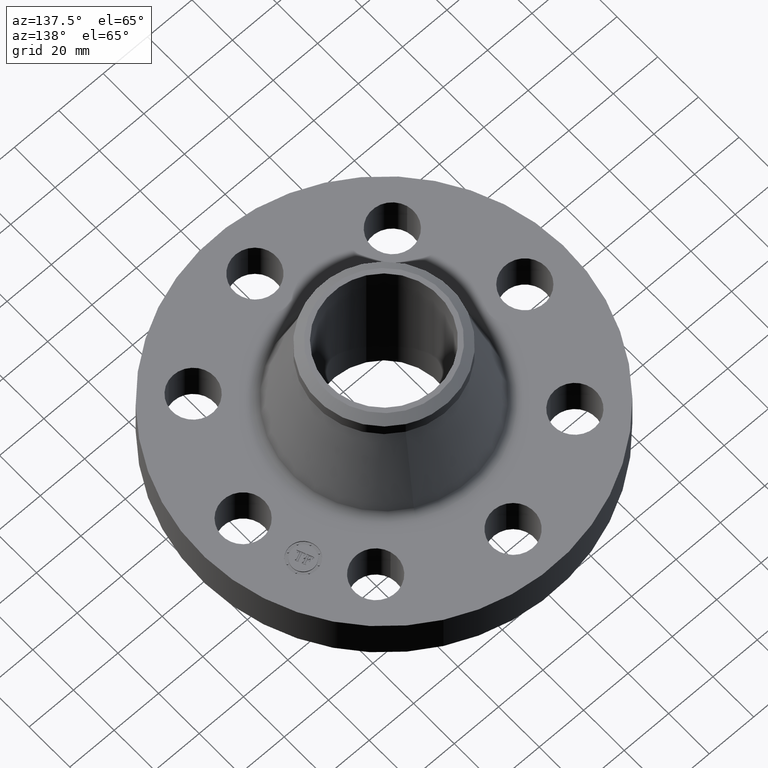
[diagram: clean part render]
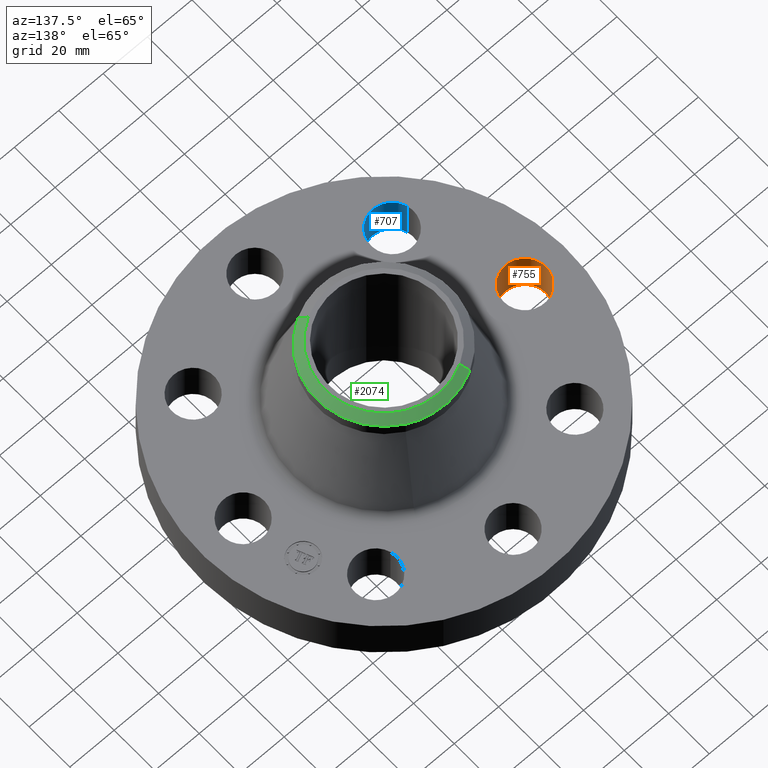
[diagram: same view with three faces highlighted in distinct colors, each labeled with its STEP entity id]
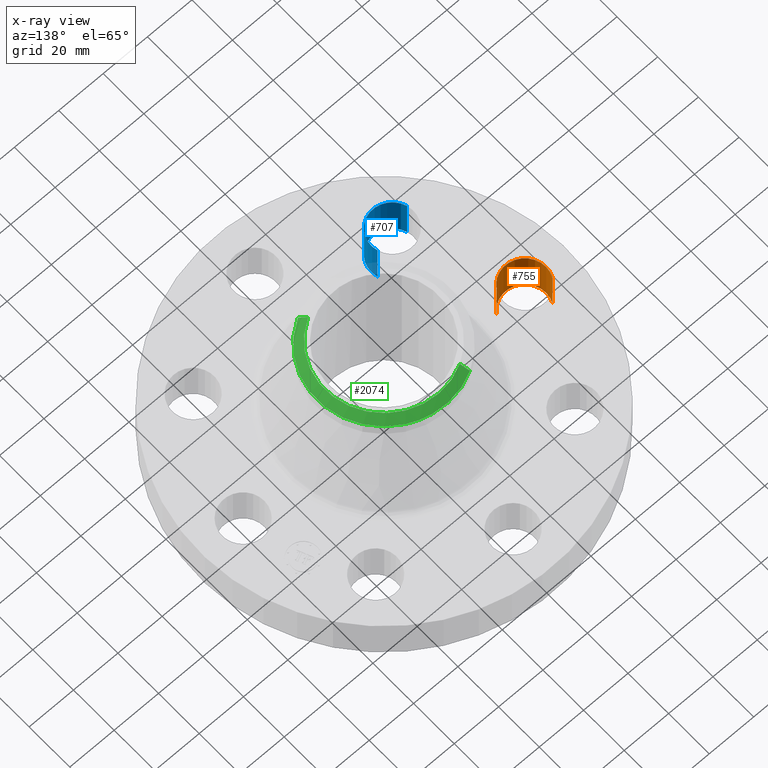
[diagram: x-ray of the same camera — body ghosted, the three highlighted faces saturated]
A machine part, auxiliary view with three faces highlighted in distinct colors.
The next image is the same camera in x-ray (body ghosted, the three faces saturated) — at least one of them is partly hidden behind the body in this view.
Their STEP definitions:

[orange] entity #755 — the highlighted cylindrical surface (edge-blend (fillet) strip) has radius 9.525 mm, axis along (0, 0, -1).
#237=AXIS2_PLACEMENT_3D('Circle Axis2P3D',#235,#236,$) ;
#425=AXIS2_PLACEMENT_3D('Circle Axis2P3D',#423,#424,$) ;
#737=AXIS2_PLACEMENT_3D('Cylinder Axis2P3D',#734,#735,#736) ;
#235=CARTESIAN_POINT('Axis2P3D Location',(-2.5,2.40639004786E-011,0.)) ;
#239=CARTESIAN_POINT('Vertex',(-2.1709065393,-0.179784576949,0.)) ;
#241=CARTESIAN_POINT('Vertex',(-2.8290934607,0.179784576997,0.)) ;
#418=CARTESIAN_POINT('Vertex',(-2.8290934607,0.179784576954,0.810000000003)) ;
#420=CARTESIAN_POINT('Vertex',(-2.1709065393,-0.179784576977,0.809999999988)) ;
#423=CARTESIAN_POINT('Axis2P3D Location',(-2.5,-1.93323572374E-011,0.810000000003)) ;
#734=CARTESIAN_POINT('Axis2P3D Location',(-2.50000000001,-3.06161699788E-016,0.806062992129)) ;
#739=CARTESIAN_POINT('Line Origine',(-2.1709065393,-0.179784576977,0.405000000001)) ;
#744=CARTESIAN_POINT('Line Origine',(-2.82909346072,0.179784576977,0.405000000001)) ;
#236=DIRECTION('Axis2P3D Direction',(0.,0.,-0.0393700787402)) ;
#424=DIRECTION('Axis2P3D Direction',(0.,0.,-0.0393700787402)) ;
#735=DIRECTION('Axis2P3D Direction',(0.,0.,-0.0393700787402)) ;
#736=DIRECTION('Axis2P3D XDirection',(0.0345504945626,-0.0188750212049,0.)) ;
#740=DIRECTION('Vector Direction',(0.,0.,-0.0393700787402)) ;
#745=DIRECTION('Vector Direction',(0.,0.,-0.0393700787402)) ;
#741=VECTOR('Line Direction',#740,0.0393700787402) ;
#746=VECTOR('Line Direction',#745,0.0393700787402) ;
#750=ORIENTED_EDGE('',*,*,#743,.F.) ;
#751=ORIENTED_EDGE('',*,*,#243,.T.) ;
#752=ORIENTED_EDGE('',*,*,#748,.T.) ;
#753=ORIENTED_EDGE('',*,*,#427,.F.) ;
#755=ADVANCED_FACE('PartBody',(#754),#738,.F.) ;
#238=CIRCLE('generated circle',#237,0.374999999988) ;
#426=CIRCLE('generated circle',#425,0.374999999988) ;
#738=CYLINDRICAL_SURFACE('generated cylinder',#737,0.375000000001) ;
#243=EDGE_CURVE('',#240,#242,#238,.T.) ;
#427=EDGE_CURVE('',#421,#419,#426,.T.) ;
#743=EDGE_CURVE('',#240,#421,#742,.F.) ;
#748=EDGE_CURVE('',#242,#419,#747,.F.) ;
#749=EDGE_LOOP('',(#750,#751,#752,#753)) ;
#754=FACE_OUTER_BOUND('',#749,.T.) ;
#742=LINE('Line',#739,#741) ;
#747=LINE('Line',#744,#746) ;
#240=VERTEX_POINT('',#239) ;
#242=VERTEX_POINT('',#241) ;
#419=VERTEX_POINT('',#418) ;
#421=VERTEX_POINT('',#420) ;

[blue] entity #707 — the highlighted cylindrical surface (edge-blend (fillet) strip) has radius 9.525 mm, axis along (-0, 0, -1).
#219=AXIS2_PLACEMENT_3D('Circle Axis2P3D',#217,#218,$) ;
#407=AXIS2_PLACEMENT_3D('Circle Axis2P3D',#405,#406,$) ;
#689=AXIS2_PLACEMENT_3D('Cylinder Axis2P3D',#686,#687,#688) ;
#217=CARTESIAN_POINT('Axis2P3D Location',(-1.76776695297,-1.76776695293,0.)) ;
#221=CARTESIAN_POINT('Vertex',(-1.4079358417,-1.66218962877,0.)) ;
#223=CARTESIAN_POINT('Vertex',(-2.12759806423,-1.87334427718,0.)) ;
#400=CARTESIAN_POINT('Vertex',(-2.12759806423,-1.87334427715,0.810000000003)) ;
#402=CARTESIAN_POINT('Vertex',(-1.40793584172,-1.66218962879,0.809999999988)) ;
#405=CARTESIAN_POINT('Axis2P3D Location',(-1.76776695296,-1.76776695298,0.810000000003)) ;
#686=CARTESIAN_POINT('Axis2P3D Location',(-1.76776695297,-1.76776695297,0.806062992129)) ;
#691=CARTESIAN_POINT('Line Origine',(-1.40793584172,-1.66218962879,0.405000000001)) ;
#696=CARTESIAN_POINT('Line Origine',(-2.12759806422,-1.87334427715,0.405000000001)) ;
#218=DIRECTION('Axis2P3D Direction',(0.,0.,-0.0393700787402)) ;
#406=DIRECTION('Axis2P3D Direction',(0.,0.,-0.0393700787402)) ;
#687=DIRECTION('Axis2P3D Direction',(-0.,0.,-0.0393700787402)) ;
#688=DIRECTION('Axis2P3D XDirection',(0.0377775444876,0.0110842335096,0.)) ;
#692=DIRECTION('Vector Direction',(0.,0.,-0.0393700787402)) ;
#697=DIRECTION('Vector Direction',(0.,0.,-0.0393700787402)) ;
#693=VECTOR('Line Direction',#692,0.0393700787402) ;
#698=VECTOR('Line Direction',#697,0.0393700787402) ;
#702=ORIENTED_EDGE('',*,*,#695,.F.) ;
#703=ORIENTED_EDGE('',*,*,#225,.T.) ;
#704=ORIENTED_EDGE('',*,*,#700,.T.) ;
#705=ORIENTED_EDGE('',*,*,#409,.F.) ;
#707=ADVANCED_FACE('PartBody',(#706),#690,.F.) ;
#220=CIRCLE('generated circle',#219,0.375000000025) ;
#408=CIRCLE('generated circle',#407,0.375000000015) ;
#690=CYLINDRICAL_SURFACE('generated cylinder',#689,0.375000000001) ;
#225=EDGE_CURVE('',#222,#224,#220,.T.) ;
#409=EDGE_CURVE('',#403,#401,#408,.T.) ;
#695=EDGE_CURVE('',#222,#403,#694,.F.) ;
#700=EDGE_CURVE('',#224,#401,#699,.F.) ;
#701=EDGE_LOOP('',(#702,#703,#704,#705)) ;
#706=FACE_OUTER_BOUND('',#701,.T.) ;
#694=LINE('Line',#691,#693) ;
#699=LINE('Line',#696,#698) ;
#222=VERTEX_POINT('',#221) ;
#224=VERTEX_POINT('',#223) ;
#401=VERTEX_POINT('',#400) ;
#403=VERTEX_POINT('',#402) ;

[green] entity #2074 — the highlighted conical surface has half-angle 52.5 deg.
#1385=AXIS2_PLACEMENT_3D('Circle Axis2P3D',#1383,#1384,$) ;
#1469=AXIS2_PLACEMENT_3D('Circle Axis2P3D',#1467,#1468,$) ;
#2055=AXIS2_PLACEMENT_3D('Cone Axis2P3D',#2052,#2053,#2054) ;
#1383=CARTESIAN_POINT('Axis2P3D Location',(6.99353086378E-017,8.21334251704E-012,2.69000000001)) ;
#1387=CARTESIAN_POINT('Vertex',(0.502553102088,-0.91991728288,2.69000000001)) ;
#1389=CARTESIAN_POINT('Vertex',(-0.502553102087,0.919917282877,2.69000000001)) ;
#1422=CARTESIAN_POINT('Vertex',(0.570516390939,1.04432324865,2.58122384701)) ;
#1436=CARTESIAN_POINT('Vertex',(-0.57051639094,1.04432324865,2.58122384701)) ;
#1440=CARTESIAN_POINT('Control Point',(-0.57051639094,1.04432324865,2.58122384701)) ;
#1441=CARTESIAN_POINT('Control Point',(-0.36165174121,1.15842652684,2.58122384701)) ;
#1442=CARTESIAN_POINT('Control Point',(-0.124263517126,1.22035069265,2.58122384702)) ;
#1443=CARTESIAN_POINT('Control Point',(0.124263517124,1.22035069265,2.58122384702)) ;
#1444=CARTESIAN_POINT('Control Point',(0.361651741209,1.15842652684,2.58122384703)) ;
#1445=CARTESIAN_POINT('Control Point',(0.570516390939,1.04432324865,2.58122384703)) ;
#1467=CARTESIAN_POINT('Axis2P3D Location',(0.,0.,2.58122384701)) ;
#1471=CARTESIAN_POINT('Vertex',(0.57051639094,-1.04432324865,2.58122384701)) ;
#2052=CARTESIAN_POINT('Axis2P3D Location',(0.,0.,2.69000000001)) ;
#2057=CARTESIAN_POINT('Line Origine',(-0.536534746514,0.982120265764,2.63561192352)) ;
#2062=CARTESIAN_POINT('Line Origine',(0.536534746514,-0.982120265764,2.63561192352)) ;
#1384=DIRECTION('Axis2P3D Direction',(0.,0.,-0.0393700787402)) ;
#1468=DIRECTION('Axis2P3D Direction',(-0.,0.,-0.0393700787402)) ;
#2053=DIRECTION('Axis2P3D Direction',(-0.,-0.,-0.0393700787402)) ;
#2054=DIRECTION('Axis2P3D XDirection',(-0.0188750212049,0.0345504945626,0.)) ;
#2058=DIRECTION('Vector Direction',(-0.014974561121,0.02741075027,-0.023966985394)) ;
#2063=DIRECTION('Vector Direction',(0.014974561121,-0.02741075027,-0.023966985394)) ;
#2059=VECTOR('Line Direction',#2058,0.0393700787402) ;
#2064=VECTOR('Line Direction',#2063,0.0393700787402) ;
#2068=ORIENTED_EDGE('',*,*,#2061,.F.) ;
#2069=ORIENTED_EDGE('',*,*,#1391,.F.) ;
#2070=ORIENTED_EDGE('',*,*,#2066,.T.) ;
#2071=ORIENTED_EDGE('',*,*,#1473,.T.) ;
#2072=ORIENTED_EDGE('',*,*,#1446,.F.) ;
#2074=ADVANCED_FACE('PartBody',(#2073),#2056,.T.) ;
#1439=B_SPLINE_CURVE_WITH_KNOTS('',5,(#1440,#1441,#1442,#1443,#1444,#1445),.UNSPECIFIED.,.F.,.U.,(6,6),(-15.113,15.113),.UNSPECIFIED.) ;
#1386=CIRCLE('generated circle',#1385,1.04824015749) ;
#1470=CIRCLE('generated circle',#1469,1.19) ;
#2056=CONICAL_SURFACE('Cone',#2055,1.04824015748,0.916297857297) ;
#1391=EDGE_CURVE('',#1388,#1390,#1386,.F.) ;
#1446=EDGE_CURVE('',#1437,#1423,#1439,.T.) ;
#1473=EDGE_CURVE('',#1472,#1423,#1470,.F.) ;
#2061=EDGE_CURVE('',#1390,#1437,#2060,.T.) ;
#2066=EDGE_CURVE('',#1388,#1472,#2065,.T.) ;
#2067=EDGE_LOOP('',(#2068,#2069,#2070,#2071,#2072)) ;
#2073=FACE_OUTER_BOUND('',#2067,.T.) ;
#2060=LINE('Line',#2057,#2059) ;
#2065=LINE('Line',#2062,#2064) ;
#1388=VERTEX_POINT('',#1387) ;
#1390=VERTEX_POINT('',#1389) ;
#1423=VERTEX_POINT('',#1422) ;
#1437=VERTEX_POINT('',#1436) ;
#1472=VERTEX_POINT('',#1471) ;